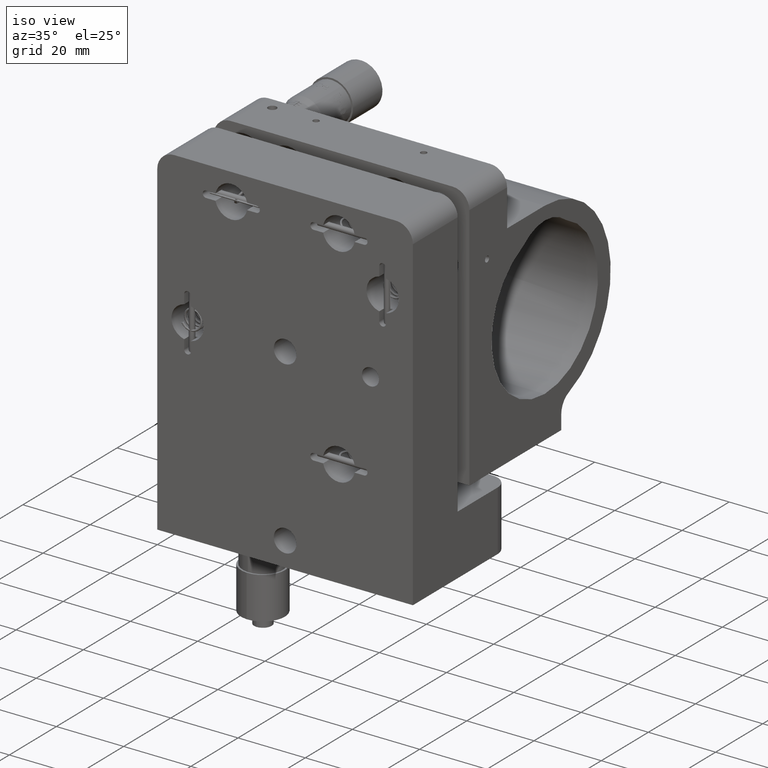
[diagram: clean part render]
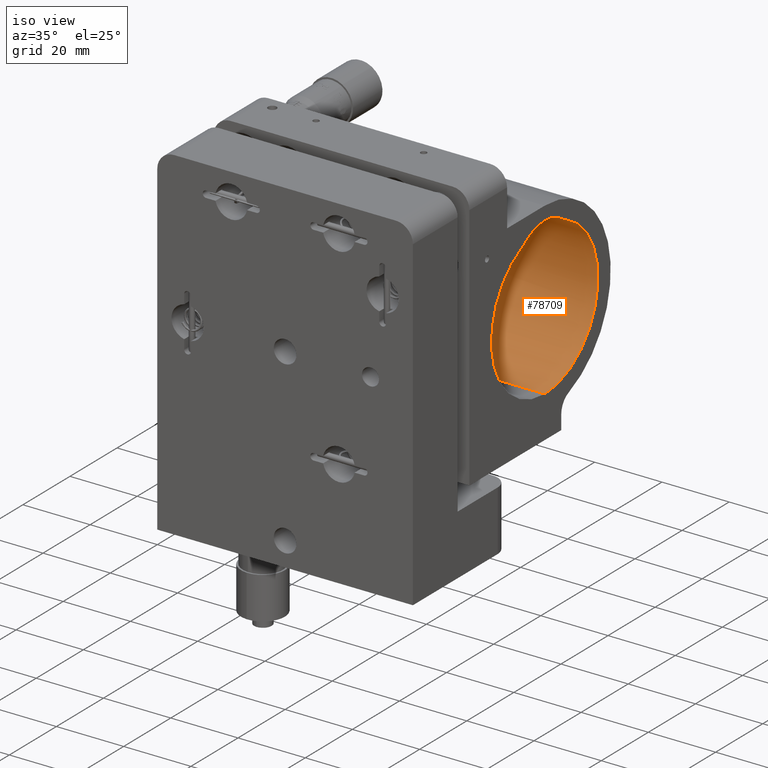
[diagram: same view with one face highlighted and labeled with its STEP entity id]
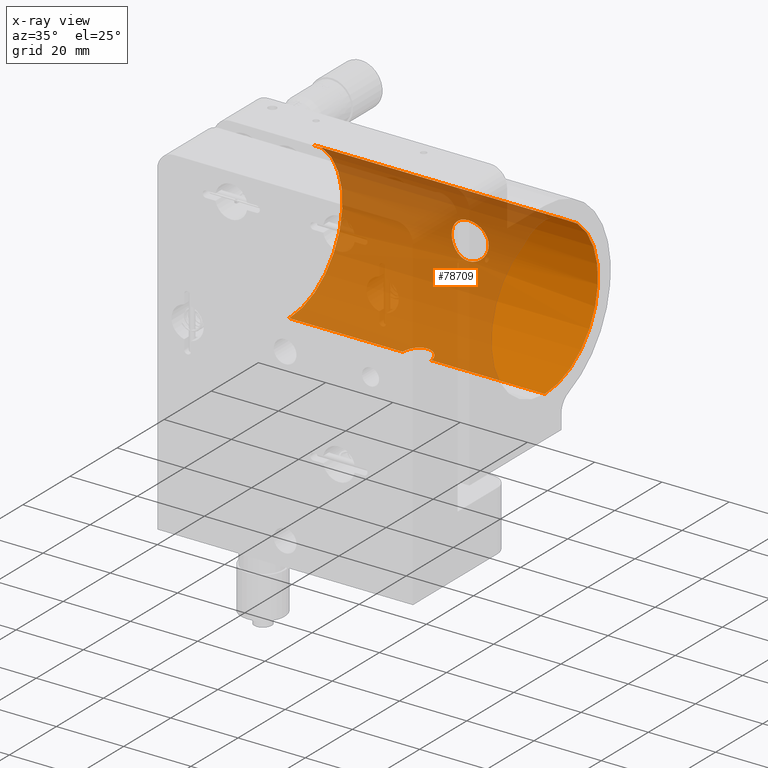
[diagram: x-ray of the same camera — body ghosted, the highlighted face saturated]
A machine part, iso view. The second image highlights one B-rep face of the part: STEP entity #78709.
The next image is the same camera in x-ray: the body ghosted, the highlighted face saturated — about 69% of this face is hidden behind the body in this view.
In plain terms, the highlighted cylindrical surface (partial cylindrical patch) has radius 22.6 mm, axis along (1, -0, -0).
Its self-contained STEP definition (entity closure, byte-faithful):
#14 = AXIS2_PLACEMENT_3D ( 'NONE', #53756, #81738, #88781 ) ;
#96 = CARTESIAN_POINT ( 'NONE',  ( -2.909797222453019700, 78.11232843119766800, 4.670688905450046700 ) ) ;
#166 = CARTESIAN_POINT ( 'NONE',  ( -1.887327520408308600, 59.81812629525781900, -22.27540529926541200 ) ) ;
#399 = CARTESIAN_POINT ( 'NONE',  ( -2.445134479623764600, 78.05402953130396800, -4.939612601415528400 ) ) ;
#988 = CARTESIAN_POINT ( 'NONE',  ( -4.137235025438142700, 78.30726831232989600, -3.628427790745368600 ) ) ;
#1289 = CARTESIAN_POINT ( 'NONE',  ( -0.3647821834217540000, 77.92053831455767500, -5.500000000000161600 ) ) ;
#2522 = DIRECTION ( 'NONE',  ( 1.000000000000000000, 0.0000000000000000000, 0.0000000000000000000 ) ) ;
#3145 = CARTESIAN_POINT ( 'NONE',  ( 5.208603034774367500, 78.53079963456215800, -1.775665216800517400 ) ) ;
#3165 = FACE_BOUND ( 'NONE', #39757, .T. ) ;
#3414 = DIRECTION ( 'NONE',  ( 0.0000000000000000000, 0.0000000000000000000, -1.000000000000000000 ) ) ;
#3455 = CARTESIAN_POINT ( 'NONE',  ( 3.819176736342885900, 57.88510077800894000, -22.52271339278398100 ) ) ;
#3756 = CARTESIAN_POINT ( 'NONE',  ( 4.762632890526465900, 78.43180295900427300, 2.756756082276300600 ) ) ;
#3764 = CARTESIAN_POINT ( 'NONE',  ( 4.114271482571029800, 57.10101963064519700, -22.57480678846571100 ) ) ;
#4059 = CARTESIAN_POINT ( 'NONE',  ( 5.147888260120202700, 78.51679987212504800, -1.944557089447698200 ) ) ;
#4206 = B_SPLINE_CURVE_WITH_KNOTS ( 'NONE', 3,
 ( #45011, #24602, #42190, #70483, #56221, #28784, #35185, #62595, #96, #55631, #14452, #21489, #42767, #69606, #48903, #27889, #29094, #6821, #56514, #83599, #35488, #7122, #55918, #56803, #77767, #36072, #63201, #35778, #20876, #988, #77461, #14151, #84196, #14749, #399, #84800, #70188, #49194, #1289, #7717 ),
 .UNSPECIFIED., .F., .F.,
 ( 4, 2, 2, 2, 2, 2, 2, 2, 2, 2, 2, 2, 2, 2, 2, 2, 2, 2, 2, 4 ),
 ( 0.01726039556535646800, 0.01833887838771401700, 0.01941736121007156500, 0.01995660262125034000, 0.02049584403242911400, 0.02157432685478666300, 0.02265280967714421200, 0.02373129249950176700, 0.02480977532185931600, 0.02534901673303809100, 0.02588825814421686800, 0.02696674096657442100, 0.02804522378893196900, 0.02912370661128952200, 0.02966294802246829300, 0.03020218943364706700, 0.03128067225600461600, 0.03235915507836215800, 0.03343763790071969900, 0.03451612072307724800 ),
 .UNSPECIFIED. ) ;
#4361 = CARTESIAN_POINT ( 'NONE',  ( 1.426688839024242500, 77.96623836718455900, -5.314819003931194000 ) ) ;
#4379 = B_SPLINE_CURVE_WITH_KNOTS ( 'NONE', 3,
 ( #66857, #11099, #17805, #3764, #73528, #3455, #58666, #66259, #59878, #37940, #39159, #52859, #52245, #16906, #30950, #24538, #65660, #52546 ),
 .UNSPECIFIED., .F., .F.,
 ( 4, 2, 2, 2, 2, 2, 2, 2, 4 ),
 ( 0.01997617827993586700, 0.02080800132001962100, 0.02163982436010338000, 0.02247164740018713400, 0.02330347044027088900, 0.02413529348035464400, 0.02496711652043839800, 0.02579893956052215600, 0.02663076260060591100 ),
 .UNSPECIFIED. ) ;
#4610 = EDGE_CURVE ( 'NONE', #82246, #15120, #8044, .T. ) ;
#4668 = CARTESIAN_POINT ( 'NONE',  ( 37.99999999999998600, 55.99999999999979400, -22.60000000000009700 ) ) ;
#6724 = ORIENTED_EDGE ( 'NONE', *, *, #39013, .T. ) ;
#6821 = CARTESIAN_POINT ( 'NONE',  ( -5.428275683078813300, 78.58262622917975200, 0.9033436432465471500 ) ) ;
#7122 = CARTESIAN_POINT ( 'NONE',  ( -5.500119342012360400, 78.60002904340838400, -0.3609831407669597000 ) ) ;
#7663 = LINE ( 'NONE', #64077, #60063 ) ;
#7717 = CARTESIAN_POINT ( 'NONE',  ( 7.542822963647016000E-015, 77.92053831455766000, -5.500000000000159000 ) ) ;
#7743 = DIRECTION ( 'NONE',  ( 1.000000000000000000, -0.0000000000000000000, -0.0000000000000000000 ) ) ;
#7921 = VERTEX_POINT ( 'NONE', #73264 ) ;
#8044 = B_SPLINE_CURVE_WITH_KNOTS ( 'NONE', 3,
 ( #52536, #24835, #30942, #59870, #4361, #79640, #10182, #11395, #18416, #24528, #80240, #73520, #59560, #25143, #73825, #4059, #3145, #31548, #80545, #23937, #31848, #72608, #80844, #38837, #87257, #37932, #31243, #3756, #52850, #86954, #86661, #44935, #79934, #51935, #58956, #65951, #24230, #45243, #59244, #17498, #66251, #67757 ),
 .UNSPECIFIED., .F., .F.,
 ( 4, 2, 2, 2, 2, 2, 2, 2, 2, 2, 2, 2, 2, 2, 2, 2, 2, 2, 2, 2, 4 ),
 ( 1.263559727891115400E-019, 0.001078774722834778200, 0.001618162084252168400, 0.002157549445669558500, 0.003236324168504339400, 0.004315098891339122200, 0.005393873614173904000, 0.006472648337008685000, 0.007012035698426074600, 0.007551423059843463300, 0.008630197782678244300, 0.009708972505513023500, 0.01078774722834780500, 0.01132713458976519400, 0.01186652195118258500, 0.01294529667401736100, 0.01402407139685213700, 0.01510284611968691300, 0.01618162084252169200, 0.01672100820393907600, 0.01726039556535646800 ),
 .UNSPECIFIED. ) ;
#8381 = CARTESIAN_POINT ( 'NONE',  ( -4.031952055813453800, 57.37203696705304200, -22.55977036130341100 ) ) ;
#10182 = CARTESIAN_POINT ( 'NONE',  ( 1.944646276250861200, 78.00600443969847200, -5.147893130937132100 ) ) ;
#10256 = EDGE_CURVE ( 'NONE', #78390, #57122, #67753, .T. ) ;
#10800 = FACE_OUTER_BOUND ( 'NONE', #27846, .T. ) ;
#11099 = CARTESIAN_POINT ( 'NONE',  ( 4.249999999999991100, 56.28053912576712700, -22.60000000000009700 ) ) ;
#11395 = CARTESIAN_POINT ( 'NONE',  ( 2.443693501332639100, 78.05384245363271100, -4.940462871096564800 ) ) ;
#14151 = CARTESIAN_POINT ( 'NONE',  ( -3.638788000518283500, 78.21911519219574400, -4.139641987620115600 ) ) ;
#14452 = CARTESIAN_POINT ( 'NONE',  ( -3.633473197002504500, 78.21822994996634300, 4.144446651324679800 ) ) ;
#14749 = CARTESIAN_POINT ( 'NONE',  ( -2.760558968411239700, 78.09168388864426900, -4.770696387476172100 ) ) ;
#15107 = CARTESIAN_POINT ( 'NONE',  ( -4.249999999999975100, 56.27797270421788800, -22.60000000000010100 ) ) ;
#15120 = VERTEX_POINT ( 'NONE', #47024 ) ;
#16904 = VECTOR ( 'NONE', #7743, 1000.000000000000000 ) ;
#16906 = CARTESIAN_POINT ( 'NONE',  ( 1.376714408213092900, 60.03034620430721400, -22.23798434303996900 ) ) ;
#17498 = CARTESIAN_POINT ( 'NONE',  ( 0.3600521534491935000, 77.92275257818947400, 5.491198131718176600 ) ) ;
#17805 = CARTESIAN_POINT ( 'NONE',  ( 4.222494180899621700, 56.55679165909030800, -22.59478100827692500 ) ) ;
#17841 = ORIENTED_EDGE ( 'NONE', *, *, #61649, .T. ) ;
#18416 = CARTESIAN_POINT ( 'NONE',  ( 2.759061703234030100, 78.09151570874593100, -4.771421410062025400 ) ) ;
#20245 = ORIENTED_EDGE ( 'NONE', *, *, #30913, .F. ) ;
#20876 = CARTESIAN_POINT ( 'NONE',  ( -4.364954114247684200, 78.35062259361143300, -3.351026330675063800 ) ) ;
#21339 = CARTESIAN_POINT ( 'NONE',  ( 7.213771624776588500E-015, 60.24999999999965900, -22.19679030851094800 ) ) ;
#21489 = CARTESIAN_POINT ( 'NONE',  ( -4.140807803085875700, 78.30681294802875000, 3.637619586613647400 ) ) ;
#21556 = CARTESIAN_POINT ( 'NONE',  ( -0.2815529936652832500, 60.24999999999965900, -22.19679030851094500 ) ) ;
#23937 = CARTESIAN_POINT ( 'NONE',  ( 5.464650970036638400, 78.59131857045417700, -0.7203364882579450500 ) ) ;
#24230 = CARTESIAN_POINT ( 'NONE',  ( 1.433065739744184600, 77.96448528669853300, 5.322284021705720600 ) ) ;
#24528 = CARTESIAN_POINT ( 'NONE',  ( 3.355902199240707000, 78.17396501301433900, -4.372276773465080700 ) ) ;
#24538 = CARTESIAN_POINT ( 'NONE',  ( 0.5590603867174665000, 60.22234085316902300, -22.20213841562770800 ) ) ;
#24602 = CARTESIAN_POINT ( 'NONE',  ( -0.3596502502633244800, 77.92053831455766000, 5.499999999999841000 ) ) ;
#24835 = CARTESIAN_POINT ( 'NONE',  ( 0.3648809147981250700, 77.92053831455768900, -5.500000000000158100 ) ) ;
#25143 = CARTESIAN_POINT ( 'NONE',  ( 4.771893086118630800, 78.43306081022811300, -2.758574996033078100 ) ) ;
#25261 = CARTESIAN_POINT ( 'NONE',  ( -38.00000000000000000, 55.99999999999979400, -22.60000000000009700 ) ) ;
#26079 = CARTESIAN_POINT ( 'NONE',  ( -250.0000000000000000, 55.99999999999979400, -22.60000000000009700 ) ) ;
#27647 = VERTEX_POINT ( 'NONE', #77266 ) ;
#27846 = EDGE_LOOP ( 'NONE', ( #63146, #6724, #52497, #52370, #17841, #37813, #52633 ) ) ;
#27889 = CARTESIAN_POINT ( 'NONE',  ( -5.217352118944898400, 78.53247441436030800, 1.777754285658661200 ) ) ;
#28254 = CARTESIAN_POINT ( 'NONE',  ( -3.377663190365505200, 58.59460968090687800, -22.45178330479114600 ) ) ;
#28784 = CARTESIAN_POINT ( 'NONE',  ( -2.273386836776586600, 78.03749356654515200, 5.011371901853724600 ) ) ;
#29094 = CARTESIAN_POINT ( 'NONE',  ( -5.322623149543535900, 78.55738547024921600, 1.431261445417624900 ) ) ;
#29457 = CARTESIAN_POINT ( 'NONE',  ( -3.201960825484680800, 58.80828682624763100, -22.42571089317879200 ) ) ;
#29801 = EDGE_CURVE ( 'NONE', #7921, #57122, #7663, .T. ) ;
#30913 = EDGE_CURVE ( 'NONE', #15120, #82246, #4206, .T. ) ;
#30942 = CARTESIAN_POINT ( 'NONE',  ( 0.7233781988226223300, 77.92964601439180700, -5.464052063006053400 ) ) ;
#30950 = CARTESIAN_POINT ( 'NONE',  ( 1.107527809448753300, 60.11267467077501400, -22.22271404575501200 ) ) ;
#31243 = CARTESIAN_POINT ( 'NONE',  ( 4.932631968902984300, 78.46851063338004900, 2.439573324671394900 ) ) ;
#31548 = CARTESIAN_POINT ( 'NONE',  ( 5.313749544135659700, 78.55533907563187800, -1.430593694315032400 ) ) ;
#31848 = CARTESIAN_POINT ( 'NONE',  ( 5.499853317613116100, 78.59996430296149600, -0.3625072078270270600 ) ) ;
#32652 = VERTEX_POINT ( 'NONE', #25261 ) ;
#35185 = CARTESIAN_POINT ( 'NONE',  ( -2.435750080970908300, 78.05488413943454900, 4.934539819118634300 ) ) ;
#35488 = CARTESIAN_POINT ( 'NONE',  ( -5.499939880395725600, 78.59998536912340200, 0.1832122078537733500 ) ) ;
#35556 = CARTESIAN_POINT ( 'NONE',  ( -2.131246050831864000, 59.68746126017760600, -22.29769125045618200 ) ) ;
#35778 = CARTESIAN_POINT ( 'NONE',  ( -4.473163234147278900, 78.37207138391087800, -3.205200829003545400 ) ) ;
#35928 = CYLINDRICAL_SURFACE ( 'NONE', #81382, 22.59999999999999800 ) ;
#36072 = CARTESIAN_POINT ( 'NONE',  ( -4.942367419139655400, 78.47040296191113400, -2.439679119221552600 ) ) ;
#37813 = ORIENTED_EDGE ( 'NONE', *, *, #10256, .T. ) ;
#37932 = CARTESIAN_POINT ( 'NONE',  ( 5.010706080715077200, 78.48583157918957900, 2.274969557391306000 ) ) ;
#37940 = CARTESIAN_POINT ( 'NONE',  ( 2.811054800621727500, 59.19949497639704100, -22.37324507105242700 ) ) ;
#38837 = CARTESIAN_POINT ( 'NONE',  ( 5.322882374850997200, 78.55744625202264300, 1.430629238801825800 ) ) ;
#39013 = EDGE_CURVE ( 'NONE', #32652, #27647, #84982, .T. ) ;
#39159 = CARTESIAN_POINT ( 'NONE',  ( 2.597520660534458500, 59.37547396702262100, -22.34705950496215700 ) ) ;
#39215 = VECTOR ( 'NONE', #53184, 1000.000000000000000 ) ;
#39757 = EDGE_LOOP ( 'NONE', ( #78200, #20245 ) ) ;
#42190 = CARTESIAN_POINT ( 'NONE',  ( -0.7180913259285449700, 77.92939527074790400, 5.465070879490208500 ) ) ;
#42767 = CARTESIAN_POINT ( 'NONE',  ( -4.372010830170277800, 78.35143373526533100, 3.356088744608972000 ) ) ;
#43148 = CARTESIAN_POINT ( 'NONE',  ( -3.688348277126579900, 58.12995187983752700, -22.50061950149664000 ) ) ;
#44935 = CARTESIAN_POINT ( 'NONE',  ( 3.633054479000796400, 78.21814700532739600, 4.144980950233334100 ) ) ;
#45011 = CARTESIAN_POINT ( 'NONE',  ( 8.346490492707600600E-015, 77.92053831455768900, 5.499999999999840100 ) ) ;
#45206 = CARTESIAN_POINT ( 'NONE',  ( -38.00000000000000000, 55.99999999999979400, -9.584347204771859200E-014 ) ) ;
#45243 = CARTESIAN_POINT ( 'NONE',  ( 0.9019587134450390800, 77.93837422519146700, 5.428541851618391900 ) ) ;
#45444 = AXIS2_PLACEMENT_3D ( 'NONE', #45206, #2522, #3414 ) ;
#47024 = CARTESIAN_POINT ( 'NONE',  ( 8.346490492707600600E-015, 77.92053831455768900, 5.499999999999840100 ) ) ;
#47154 = DIRECTION ( 'NONE',  ( 1.000000000000000000, -0.0000000000000000000, -0.0000000000000000000 ) ) ;
#48903 = CARTESIAN_POINT ( 'NONE',  ( -4.939177587507479900, 78.46969326318625800, 2.446568656772201100 ) ) ;
#48964 = CARTESIAN_POINT ( 'NONE',  ( -4.249999999999982200, 55.99999999999979400, -22.60000000000009700 ) ) ;
#49194 = CARTESIAN_POINT ( 'NONE',  ( -0.7243486358668853600, 77.92964553728288000, -5.464062307051409400 ) ) ;
#49513 = CARTESIAN_POINT ( 'NONE',  ( -250.0000000000000000, 55.99999999999979400, -22.60000000000009700 ) ) ;
#49542 = CARTESIAN_POINT ( 'NONE',  ( -1.102472527840275400, 60.11388280057624900, -22.22248884137719900 ) ) ;
#50139 = CARTESIAN_POINT ( 'NONE',  ( -0.5582709470878395300, 60.22229924580877000, -22.20214474056174900 ) ) ;
#50514 = B_SPLINE_CURVE_WITH_KNOTS ( 'NONE', 3,
 ( #54492, #21556, #50139, #49542, #64181, #166, #35556, #83661, #69962, #29457, #28254, #43148, #77839, #8381, #83962, #63559, #15107, #48964 ),
 .UNSPECIFIED., .F., .F.,
 ( 4, 2, 2, 2, 2, 2, 2, 2, 4 ),
 ( 6.573037869964976100E-019, 0.0008325217662599473300, 0.001665043532519894000, 0.002497565298779840900, 0.003330087065039787600, 0.004162608831299734700, 0.004995130597559681000, 0.005827652363819627200, 0.006660174130079574300 ),
 .UNSPECIFIED. ) ;
#51935 = CARTESIAN_POINT ( 'NONE',  ( 2.762185206414681500, 78.09192087026392000, 4.769520666003973700 ) ) ;
#52245 = CARTESIAN_POINT ( 'NONE',  ( 1.887579527885059100, 59.81786283334858500, -22.27544750512546300 ) ) ;
#52370 = ORIENTED_EDGE ( 'NONE', *, *, #79930, .F. ) ;
#52497 = ORIENTED_EDGE ( 'NONE', *, *, #58044, .F. ) ;
#52536 = CARTESIAN_POINT ( 'NONE',  ( 7.542822963647016000E-015, 77.92053831455766000, -5.500000000000159000 ) ) ;
#52546 = CARTESIAN_POINT ( 'NONE',  ( 7.213771624776588500E-015, 60.24999999999965900, -22.19679030851094800 ) ) ;
#52633 = ORIENTED_EDGE ( 'NONE', *, *, #29801, .F. ) ;
#52850 = CARTESIAN_POINT ( 'NONE',  ( 4.670357428949629700, 78.41233510139008400, 2.910278726050444100 ) ) ;
#52859 = CARTESIAN_POINT ( 'NONE',  ( 2.132105472008480900, 59.68714853785171200, -22.29775389316567000 ) ) ;
#53184 = DIRECTION ( 'NONE',  ( 1.000000000000000000, -0.0000000000000000000, -0.0000000000000000000 ) ) ;
#53756 = CARTESIAN_POINT ( 'NONE',  ( 37.99999999999998600, 55.99999999999979400, -9.584347204771859200E-014 ) ) ;
#54475 = DIRECTION ( 'NONE',  ( 0.0000000000000000000, 0.0000000000000000000, -1.000000000000000000 ) ) ;
#54492 = CARTESIAN_POINT ( 'NONE',  ( 7.213771624776588500E-015, 60.24999999999965900, -22.19679030851094800 ) ) ;
#55227 = CARTESIAN_POINT ( 'NONE',  ( 7.542822963647016000E-015, 77.92053831455766000, -5.500000000000159000 ) ) ;
#55631 = CARTESIAN_POINT ( 'NONE',  ( -3.357559388306193200, 78.17421475812518800, 4.371019773823898700 ) ) ;
#55918 = CARTESIAN_POINT ( 'NONE',  ( -5.464689495589681200, 78.59132995136599200, -0.7188706976374168400 ) ) ;
#56221 = CARTESIAN_POINT ( 'NONE',  ( -1.776651829401611400, 77.98994842346152700, 5.217475679901251200 ) ) ;
#56514 = CARTESIAN_POINT ( 'NONE',  ( -5.454932684786162300, 78.58906788984712900, 0.7254967106266151400 ) ) ;
#56803 = CARTESIAN_POINT ( 'NONE',  ( -5.324354730952427100, 78.55779490529364800, -1.425080019547896300 ) ) ;
#57122 = VERTEX_POINT ( 'NONE', #58039 ) ;
#58039 = CARTESIAN_POINT ( 'NONE',  ( 37.99999999999998600, 64.98305938976226100, 20.73799999999991100 ) ) ;
#58044 = EDGE_CURVE ( 'NONE', #90289, #27647, #50514, .T. ) ;
#58666 = CARTESIAN_POINT ( 'NONE',  ( 3.688796036016122000, 58.12897627134910300, -22.50069955960845600 ) ) ;
#58956 = CARTESIAN_POINT ( 'NONE',  ( 2.440007305407693000, 78.05344447954254900, 4.942223967232457900 ) ) ;
#59244 = CARTESIAN_POINT ( 'NONE',  ( 0.7210327387951397400, 77.93165135738131300, 5.455548209352952100 ) ) ;
#59560 = CARTESIAN_POINT ( 'NONE',  ( 4.369743939933703000, 78.35097124938047800, -3.359469829228794800 ) ) ;
#59870 = CARTESIAN_POINT ( 'NONE',  ( 1.252008776984994100, 77.95555853427870800, -5.358615424136813100 ) ) ;
#59878 = CARTESIAN_POINT ( 'NONE',  ( 3.201545559465878400, 58.80871914344474000, -22.42565405705279600 ) ) ;
#60063 = VECTOR ( 'NONE', #84160, 1000.000000000000000 ) ;
#61649 = EDGE_CURVE ( 'NONE', #67071, #78390, #86666, .T. ) ;
#62595 = CARTESIAN_POINT ( 'NONE',  ( -2.753956730648975600, 78.09229081877246900, 4.764271613702390200 ) ) ;
#63146 = ORIENTED_EDGE ( 'NONE', *, *, #68733, .F. ) ;
#63201 = CARTESIAN_POINT ( 'NONE',  ( -4.773607872002026300, 78.43343234695869600, -2.755480825308901600 ) ) ;
#63559 = CARTESIAN_POINT ( 'NONE',  ( -4.222992320990350400, 56.55425193128908000, -22.59487299472667500 ) ) ;
#64077 = CARTESIAN_POINT ( 'NONE',  ( -250.0000000000000000, 64.98305938976226100, 20.73799999999991100 ) ) ;
#64181 = CARTESIAN_POINT ( 'NONE',  ( -1.372822264010407500, 60.03180513012062400, -22.23772283858699300 ) ) ;
#65660 = CARTESIAN_POINT ( 'NONE',  ( 0.2813166893971920100, 60.24999999999965900, -22.19679030851094100 ) ) ;
#65951 = CARTESIAN_POINT ( 'NONE',  ( 1.775982307595675100, 77.98988155763268500, 5.217767744528006600 ) ) ;
#66251 = CARTESIAN_POINT ( 'NONE',  ( 0.1798737963193408300, 77.92053831455768900, 5.499999999999841000 ) ) ;
#66259 = CARTESIAN_POINT ( 'NONE',  ( 3.380091272453245900, 58.59128137205918600, -22.45215538621070600 ) ) ;
#66857 = CARTESIAN_POINT ( 'NONE',  ( 4.249999999999997300, 55.99999999999979400, -22.60000000000009700 ) ) ;
#67071 = VERTEX_POINT ( 'NONE', #67423 ) ;
#67423 = CARTESIAN_POINT ( 'NONE',  ( 4.249999999999997300, 55.99999999999979400, -22.60000000000009700 ) ) ;
#67753 = CIRCLE ( 'NONE', #14, 22.59999999999999800 ) ;
#67757 = CARTESIAN_POINT ( 'NONE',  ( 8.346490492707600600E-015, 77.92053831455768900, 5.499999999999840100 ) ) ;
#68194 = CIRCLE ( 'NONE', #45444, 22.59999999999999800 ) ;
#68733 = EDGE_CURVE ( 'NONE', #32652, #7921, #68194, .T. ) ;
#69606 = CARTESIAN_POINT ( 'NONE',  ( -4.769684478464730800, 78.43261022143741500, 2.761868993401031000 ) ) ;
#69962 = CARTESIAN_POINT ( 'NONE',  ( -2.810896558220427700, 59.19967007133530500, -22.37322273159400200 ) ) ;
#70188 = CARTESIAN_POINT ( 'NONE',  ( -1.433238186481359700, 77.96449052775358300, -5.322263253770313600 ) ) ;
#70483 = CARTESIAN_POINT ( 'NONE',  ( -1.432470708082975900, 77.96439605629626600, 5.322657469789879400 ) ) ;
#72608 = CARTESIAN_POINT ( 'NONE',  ( 5.500145776312553600, 78.60003547653327900, 0.3580424978930749100 ) ) ;
#73264 = CARTESIAN_POINT ( 'NONE',  ( -38.00000000000000000, 64.98305938976226100, 20.73799999999991100 ) ) ;
#73520 = CARTESIAN_POINT ( 'NONE',  ( 4.142548316718468900, 78.30714796565678200, -3.635513517906650900 ) ) ;
#73528 = CARTESIAN_POINT ( 'NONE',  ( 4.032119846185835900, 57.37175997633232800, -22.55979827223803400 ) ) ;
#73825 = CARTESIAN_POINT ( 'NONE',  ( 4.941837652112268700, 78.47028818574546000, -2.440586788332341300 ) ) ;
#76028 = CARTESIAN_POINT ( 'NONE',  ( -250.0000000000000000, 55.99999999999979400, -9.584347204771859200E-014 ) ) ;
#77266 = CARTESIAN_POINT ( 'NONE',  ( -4.249999999999982200, 55.99999999999979400, -22.60000000000009700 ) ) ;
#77461 = CARTESIAN_POINT ( 'NONE',  ( -4.017199186525030700, 78.28525218069222500, -3.760846204031651900 ) ) ;
#77767 = CARTESIAN_POINT ( 'NONE',  ( -5.217703089575733700, 78.53256397074817100, -1.776120598261968600 ) ) ;
#77839 = CARTESIAN_POINT ( 'NONE',  ( -3.819918422727020400, 57.88343995472349200, -22.52284125350652000 ) ) ;
#78200 = ORIENTED_EDGE ( 'NONE', *, *, #4610, .F. ) ;
#78390 = VERTEX_POINT ( 'NONE', #4668 ) ;
#78709 = ADVANCED_FACE ( 'NONE', ( #3165, #10800 ), #35928, .F. ) ;
#79640 = CARTESIAN_POINT ( 'NONE',  ( 1.772936359307592200, 77.99144129643919100, -5.209552644305421900 ) ) ;
#79930 = EDGE_CURVE ( 'NONE', #67071, #90289, #4379, .T. ) ;
#79934 = CARTESIAN_POINT ( 'NONE',  ( 3.356788613730948200, 78.17411397149251700, 4.371494561440225200 ) ) ;
#80240 = CARTESIAN_POINT ( 'NONE',  ( 3.637358816264321800, 78.21887762610020900, -4.140928149216476200 ) ) ;
#80545 = CARTESIAN_POINT ( 'NONE',  ( 5.358349896053511900, 78.56591965199700700, -1.253359530072390800 ) ) ;
#80844 = CARTESIAN_POINT ( 'NONE',  ( 5.464015124177552500, 78.59116566079826800, 0.7240963459190158400 ) ) ;
#81382 = AXIS2_PLACEMENT_3D ( 'NONE', #76028, #47154, #54475 ) ;
#81738 = DIRECTION ( 'NONE',  ( 1.000000000000000000, 0.0000000000000000000, 0.0000000000000000000 ) ) ;
#82246 = VERTEX_POINT ( 'NONE', #55227 ) ;
#83599 = CARTESIAN_POINT ( 'NONE',  ( -5.490783331202875300, 78.59775208127547300, 0.3659706032773373800 ) ) ;
#83661 = CARTESIAN_POINT ( 'NONE',  ( -2.592856769585113200, 59.37885691424097000, -22.34653735143471600 ) ) ;
#83962 = CARTESIAN_POINT ( 'NONE',  ( -4.113813403760302900, 57.10335788641892700, -22.57472219597935800 ) ) ;
#84160 = DIRECTION ( 'NONE',  ( 1.000000000000000000, -0.0000000000000000000, -0.0000000000000000000 ) ) ;
#84196 = CARTESIAN_POINT ( 'NONE',  ( -3.360251403473148500, 78.17460486034089200, -4.369089189408996700 ) ) ;
#84800 = CARTESIAN_POINT ( 'NONE',  ( -1.783400140889186900, 77.99049913045874400, -5.215164351483525500 ) ) ;
#84982 = LINE ( 'NONE', #26079, #39215 ) ;
#86661 = CARTESIAN_POINT ( 'NONE',  ( 4.143000995485467200, 78.30720575848856400, 3.635312184199809100 ) ) ;
#86666 = LINE ( 'NONE', #49513, #16904 ) ;
#86954 = CARTESIAN_POINT ( 'NONE',  ( 4.372076025877450300, 78.35144634039389200, 3.356008690950784700 ) ) ;
#87257 = CARTESIAN_POINT ( 'NONE',  ( 5.218512664545253100, 78.53274639167399600, 1.774196501933169800 ) ) ;
#88781 = DIRECTION ( 'NONE',  ( 0.0000000000000000000, 0.0000000000000000000, -1.000000000000000000 ) ) ;
#90289 = VERTEX_POINT ( 'NONE', #21339 ) ;